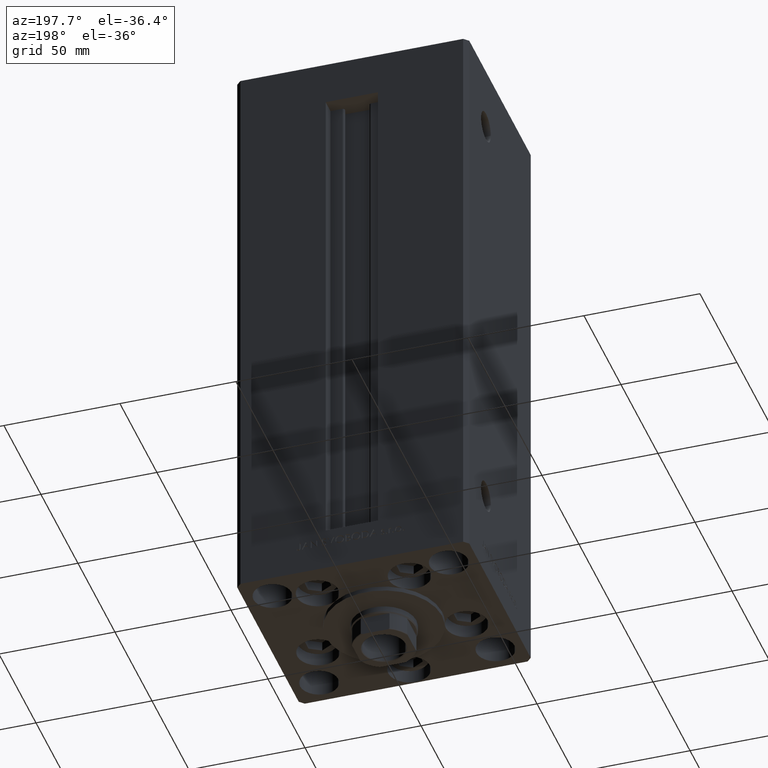
[diagram: clean part render]
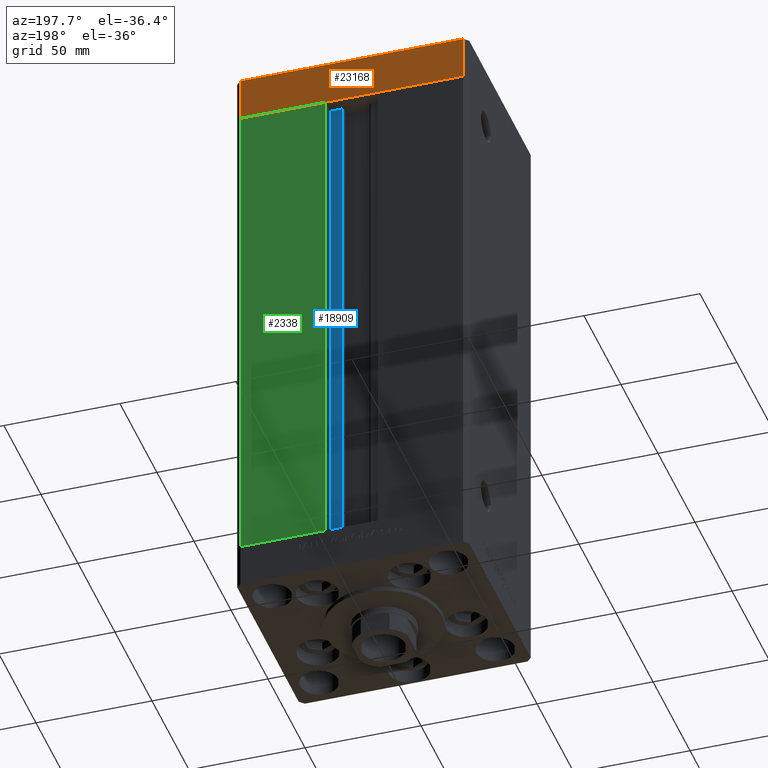
[diagram: same view with three faces highlighted in distinct colors, each labeled with its STEP entity id]
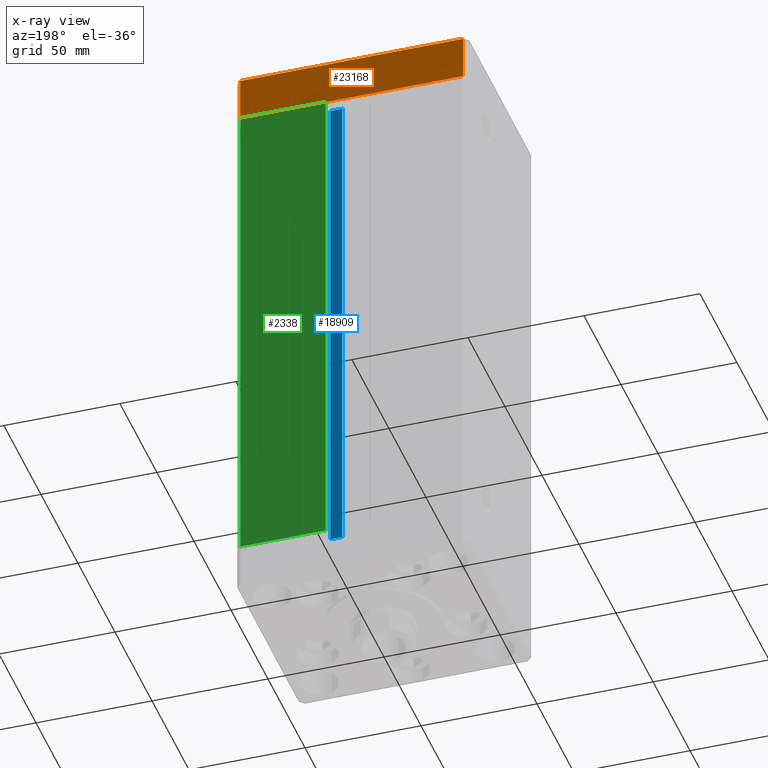
[diagram: x-ray of the same camera — body ghosted, the three highlighted faces saturated]
A machine part, auxiliary view with three faces highlighted in distinct colors.
The next image is the same camera in x-ray (body ghosted, the three faces saturated) — at least one of them is partly hidden behind the body in this view.
Their STEP definitions:

[orange] entity #23168 — the highlighted planar face has unit normal (-0, 1, 0).
#6 = ORIENTED_EDGE ( 'NONE', *, *, #30107, .F. ) ;
#1261 = VERTEX_POINT ( 'NONE', #45963 ) ;
#4082 = CARTESIAN_POINT ( 'NONE',  ( 47.99999999999990763, 43.50000000000000000, -19.00000000000000000 ) ) ;
#5396 = EDGE_CURVE ( 'NONE', #48265, #1261, #45892, .T. ) ;
#7141 = CARTESIAN_POINT ( 'NONE',  ( -48.00000000000000711, 43.49999999999996447, -19.00000000000000000 ) ) ;
#7843 = PLANE ( 'NONE',  #25674 ) ;
#10988 = CARTESIAN_POINT ( 'NONE',  ( 47.99999999999990763, 43.50000000000000000, 0.000000000000000000 ) ) ;
#11165 = DIRECTION ( 'NONE',  ( -1.000000000000000000, -3.614007241618350743E-16, 0.000000000000000000 ) ) ;
#12497 = EDGE_CURVE ( 'NONE', #42642, #28720, #29996, .T. ) ;
#13064 = VECTOR ( 'NONE', #11165, 1000.000000000000000 ) ;
#14036 = CARTESIAN_POINT ( 'NONE',  ( 47.99999999999990763, 43.50000000000000000, -19.00000000000000000 ) ) ;
#14932 = FACE_OUTER_BOUND ( 'NONE', #28227, .T. ) ;
#15184 = CARTESIAN_POINT ( 'NONE',  ( 47.99999999999990763, 43.50000000000000000, -19.00000000000000000 ) ) ;
#15310 = CARTESIAN_POINT ( 'NONE',  ( -48.00000000000000711, 43.49999999999996447, 0.000000000000000000 ) ) ;
#15774 = ORIENTED_EDGE ( 'NONE', *, *, #19637, .T. ) ;
#18491 = DIRECTION ( 'NONE',  ( -1.000000000000000000, -3.614007241618350743E-16, 0.000000000000000000 ) ) ;
#19637 = EDGE_CURVE ( 'NONE', #1261, #28720, #29699, .T. ) ;
#22019 = VECTOR ( 'NONE', #31346, 1000.000000000000000 ) ;
#23168 = ADVANCED_FACE ( 'NONE', ( #14932 ), #7843, .T. ) ;
#25674 = AXIS2_PLACEMENT_3D ( 'NONE', #15184, #29903, #18491 ) ;
#26193 = DIRECTION ( 'NONE',  ( -1.000000000000000000, -3.614007241618350743E-16, 0.000000000000000000 ) ) ;
#27045 = CARTESIAN_POINT ( 'NONE',  ( 47.99999999999990763, 43.50000000000000000, -19.00000000000000000 ) ) ;
#28227 = EDGE_LOOP ( 'NONE', ( #37265, #6, #31500, #15774 ) ) ;
#28720 = VERTEX_POINT ( 'NONE', #15310 ) ;
#29699 = LINE ( 'NONE', #7141, #34446 ) ;
#29903 = DIRECTION ( 'NONE',  ( -3.614007241618350743E-16, 1.000000000000000000, 0.000000000000000000 ) ) ;
#29996 = LINE ( 'NONE', #10988, #30298 ) ;
#30107 = EDGE_CURVE ( 'NONE', #48265, #42642, #39185, .T. ) ;
#30186 = DIRECTION ( 'NONE',  ( 0.000000000000000000, 0.000000000000000000, 1.000000000000000000 ) ) ;
#30298 = VECTOR ( 'NONE', #26193, 1000.000000000000000 ) ;
#31346 = DIRECTION ( 'NONE',  ( 0.000000000000000000, 0.000000000000000000, 1.000000000000000000 ) ) ;
#31500 = ORIENTED_EDGE ( 'NONE', *, *, #5396, .T. ) ;
#34446 = VECTOR ( 'NONE', #30186, 1000.000000000000000 ) ;
#37265 = ORIENTED_EDGE ( 'NONE', *, *, #12497, .F. ) ;
#39185 = LINE ( 'NONE', #27045, #22019 ) ;
#40755 = CARTESIAN_POINT ( 'NONE',  ( 47.99999999999990763, 43.50000000000000000, 0.000000000000000000 ) ) ;
#42642 = VERTEX_POINT ( 'NONE', #40755 ) ;
#45892 = LINE ( 'NONE', #4082, #13064 ) ;
#45963 = CARTESIAN_POINT ( 'NONE',  ( -48.00000000000000711, 43.49999999999996447, -19.00000000000000000 ) ) ;
#48265 = VERTEX_POINT ( 'NONE', #14036 ) ;

[blue] entity #18909 — the highlighted planar face has unit normal (0, -1, 0).
#58 = CARTESIAN_POINT ( 'NONE',  ( 6.183333333333997928, 36.99999999999999289, 0.000000000000000000 ) ) ;
#1162 = CARTESIAN_POINT ( 'NONE',  ( 0.000000000000000000, 36.99999999999999289, 218.5000000000000000 ) ) ;
#2637 = EDGE_CURVE ( 'NONE', #8365, #16090, #23282, .T. ) ;
#2794 = PLANE ( 'NONE',  #16660 ) ;
#3839 = VERTEX_POINT ( 'NONE', #14618 ) ;
#5964 = CARTESIAN_POINT ( 'NONE',  ( 11.24999999999999822, 36.99999999999999289, 218.5000000000000000 ) ) ;
#6013 = ORIENTED_EDGE ( 'NONE', *, *, #47020, .F. ) ;
#6112 = CARTESIAN_POINT ( 'NONE',  ( 6.183333333333997928, 36.99999999999999289, 218.5000000000000000 ) ) ;
#6332 = ORIENTED_EDGE ( 'NONE', *, *, #2637, .F. ) ;
#7077 = VECTOR ( 'NONE', #9247, 1000.000000000000000 ) ;
#7493 = ORIENTED_EDGE ( 'NONE', *, *, #19871, .T. ) ;
#8365 = VERTEX_POINT ( 'NONE', #21670 ) ;
#9247 = DIRECTION ( 'NONE',  ( -1.000000000000000000, 0.000000000000000000, 0.000000000000000000 ) ) ;
#14618 = CARTESIAN_POINT ( 'NONE',  ( 6.183333333333997928, 36.99999999999999289, 0.000000000000000000 ) ) ;
#15895 = VECTOR ( 'NONE', #44101, 1000.000000000000000 ) ;
#16090 = VERTEX_POINT ( 'NONE', #5964 ) ;
#16168 = CARTESIAN_POINT ( 'NONE',  ( 11.24999999999999822, 36.99999999999999289, 0.000000000000000000 ) ) ;
#16660 = AXIS2_PLACEMENT_3D ( 'NONE', #18206, #33658, #49125 ) ;
#16729 = CARTESIAN_POINT ( 'NONE',  ( 6.183333333333997928, 36.99999999999999289, 0.000000000000000000 ) ) ;
#17226 = LINE ( 'NONE', #16729, #15895 ) ;
#18206 = CARTESIAN_POINT ( 'NONE',  ( 6.183333333333997928, 36.99999999999999289, 0.000000000000000000 ) ) ;
#18909 = ADVANCED_FACE ( 'NONE', ( #37469 ), #2794, .F. ) ;
#19306 = DIRECTION ( 'NONE',  ( 1.000000000000000000, 0.000000000000000000, 0.000000000000000000 ) ) ;
#19871 = EDGE_CURVE ( 'NONE', #3839, #23165, #17226, .T. ) ;
#21288 = ORIENTED_EDGE ( 'NONE', *, *, #39754, .F. ) ;
#21670 = CARTESIAN_POINT ( 'NONE',  ( 11.24999999999999822, 36.99999999999999289, 0.000000000000000000 ) ) ;
#23165 = VERTEX_POINT ( 'NONE', #6112 ) ;
#23282 = LINE ( 'NONE', #16168, #33228 ) ;
#33228 = VECTOR ( 'NONE', #34666, 1000.000000000000000 ) ;
#33658 = DIRECTION ( 'NONE',  ( 0.000000000000000000, -1.000000000000000000, 0.000000000000000000 ) ) ;
#34666 = DIRECTION ( 'NONE',  ( -0.000000000000000000, -0.000000000000000000, 1.000000000000000000 ) ) ;
#35763 = LINE ( 'NONE', #58, #37595 ) ;
#37469 = FACE_OUTER_BOUND ( 'NONE', #42347, .T. ) ;
#37595 = VECTOR ( 'NONE', #19306, 1000.000000000000000 ) ;
#39754 = EDGE_CURVE ( 'NONE', #3839, #8365, #35763, .T. ) ;
#42347 = EDGE_LOOP ( 'NONE', ( #6332, #21288, #7493, #6013 ) ) ;
#42711 = LINE ( 'NONE', #1162, #7077 ) ;
#44101 = DIRECTION ( 'NONE',  ( -0.000000000000000000, -0.000000000000000000, 1.000000000000000000 ) ) ;
#47020 = EDGE_CURVE ( 'NONE', #16090, #23165, #42711, .T. ) ;
#49125 = DIRECTION ( 'NONE',  ( 0.000000000000000000, -0.000000000000000000, -1.000000000000000000 ) ) ;

[green] entity #2338 — the highlighted planar face has unit normal (0, -1, 0).
#792 = FACE_OUTER_BOUND ( 'NONE', #31181, .T. ) ;
#1425 = DIRECTION ( 'NONE',  ( -0.000000000000000000, -0.000000000000000000, 1.000000000000000000 ) ) ;
#2338 = ADVANCED_FACE ( 'NONE', ( #792 ), #15973, .F. ) ;
#3702 = LINE ( 'NONE', #30771, #49920 ) ;
#3790 = EDGE_CURVE ( 'NONE', #21227, #26675, #35949, .T. ) ;
#4016 = CARTESIAN_POINT ( 'NONE',  ( -11.24999999999999822, 43.50000000000000000, 218.5000000000000000 ) ) ;
#8635 = DIRECTION ( 'NONE',  ( 0.000000000000000000, -0.000000000000000000, -1.000000000000000000 ) ) ;
#10945 = VECTOR ( 'NONE', #30605, 1000.000000000000000 ) ;
#12819 = LINE ( 'NONE', #39906, #14766 ) ;
#13856 = VECTOR ( 'NONE', #29844, 1000.000000000000000 ) ;
#14766 = VECTOR ( 'NONE', #1425, 1000.000000000000000 ) ;
#15723 = ORIENTED_EDGE ( 'NONE', *, *, #40772, .T. ) ;
#15973 = PLANE ( 'NONE',  #18737 ) ;
#18737 = AXIS2_PLACEMENT_3D ( 'NONE', #30934, #46404, #8635 ) ;
#20871 = ORIENTED_EDGE ( 'NONE', *, *, #3790, .T. ) ;
#21227 = VERTEX_POINT ( 'NONE', #27789 ) ;
#26044 = LINE ( 'NONE', #4016, #10945 ) ;
#26675 = VERTEX_POINT ( 'NONE', #39813 ) ;
#27789 = CARTESIAN_POINT ( 'NONE',  ( 48.00000000000000711, 43.50000000000000000, 218.5000000000000000 ) ) ;
#28813 = VERTEX_POINT ( 'NONE', #29230 ) ;
#29230 = CARTESIAN_POINT ( 'NONE',  ( 11.24999999999999822, 43.50000000000000000, 0.000000000000000000 ) ) ;
#29844 = DIRECTION ( 'NONE',  ( -0.000000000000000000, -0.000000000000000000, -1.000000000000000000 ) ) ;
#30605 = DIRECTION ( 'NONE',  ( 1.000000000000000000, 0.000000000000000000, 0.000000000000000000 ) ) ;
#30771 = CARTESIAN_POINT ( 'NONE',  ( -11.24999999999999822, 43.50000000000000000, 0.000000000000000000 ) ) ;
#30934 = CARTESIAN_POINT ( 'NONE',  ( -11.24999999999999822, 43.50000000000000000, 218.5000000000000000 ) ) ;
#31029 = DIRECTION ( 'NONE',  ( -1.000000000000000000, 0.000000000000000000, 0.000000000000000000 ) ) ;
#31181 = EDGE_LOOP ( 'NONE', ( #45177, #39025, #15723, #20871 ) ) ;
#35450 = EDGE_CURVE ( 'NONE', #28813, #35736, #12819, .T. ) ;
#35736 = VERTEX_POINT ( 'NONE', #36311 ) ;
#35949 = LINE ( 'NONE', #43803, #13856 ) ;
#36311 = CARTESIAN_POINT ( 'NONE',  ( 11.24999999999999112, 43.50000000000000000, 218.5000000000000000 ) ) ;
#39025 = ORIENTED_EDGE ( 'NONE', *, *, #35450, .T. ) ;
#39813 = CARTESIAN_POINT ( 'NONE',  ( 48.00000000000000711, 43.50000000000000000, 0.000000000000000000 ) ) ;
#39906 = CARTESIAN_POINT ( 'NONE',  ( 11.24999999999999822, 43.50000000000000000, 0.000000000000000000 ) ) ;
#40772 = EDGE_CURVE ( 'NONE', #35736, #21227, #26044, .T. ) ;
#43803 = CARTESIAN_POINT ( 'NONE',  ( 48.00000000000000711, 43.50000000000000000, 218.5000000000000000 ) ) ;
#44999 = EDGE_CURVE ( 'NONE', #26675, #28813, #3702, .T. ) ;
#45177 = ORIENTED_EDGE ( 'NONE', *, *, #44999, .T. ) ;
#46404 = DIRECTION ( 'NONE',  ( 0.000000000000000000, -1.000000000000000000, 0.000000000000000000 ) ) ;
#49920 = VECTOR ( 'NONE', #31029, 1000.000000000000000 ) ;